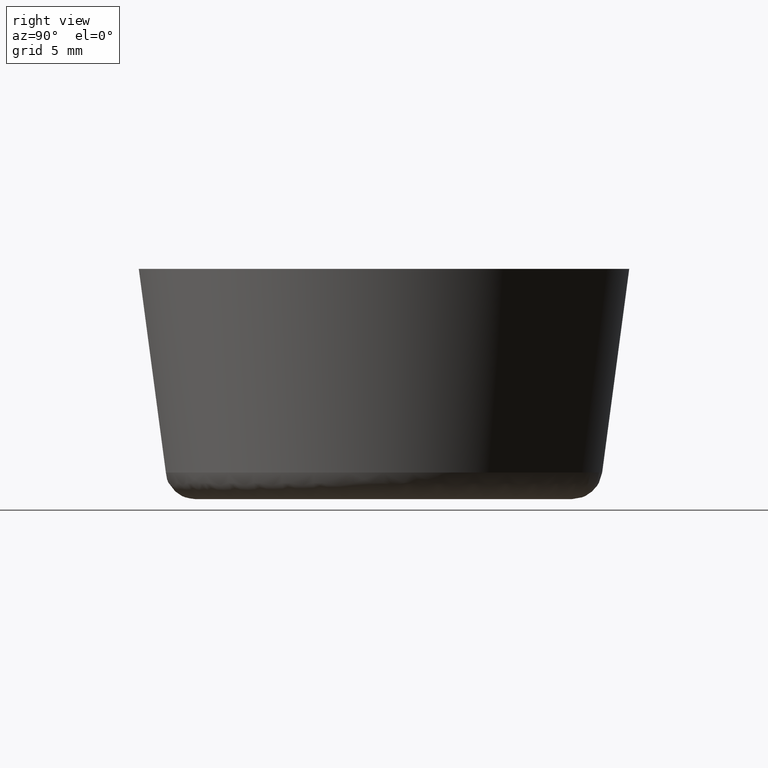
[diagram: clean part render]
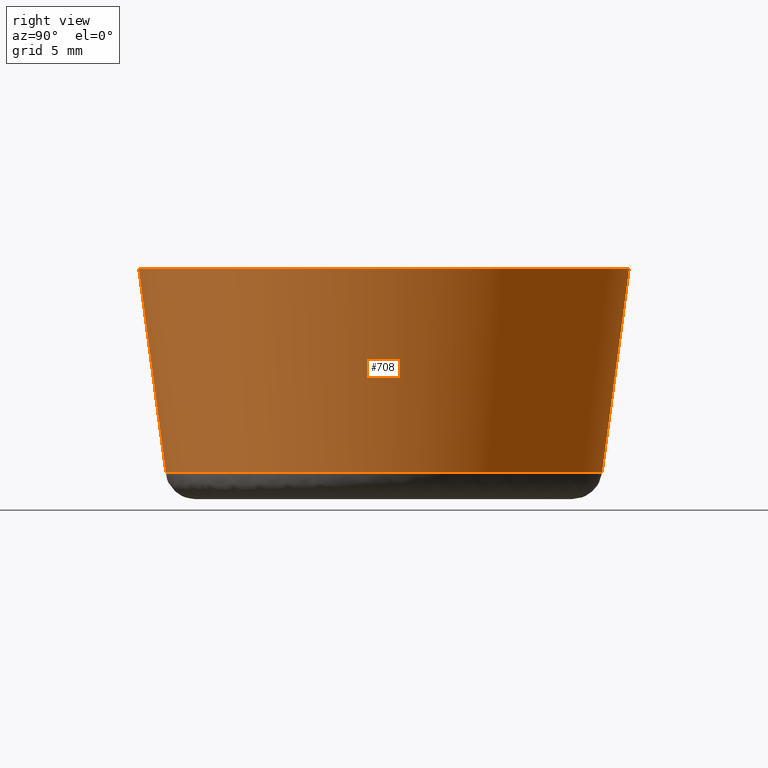
[diagram: same view with one face highlighted and labeled with its STEP entity id]
A machine part, right view. The second image highlights one B-rep face of the part: STEP entity #708.
In plain terms, the highlighted face is a freeform B-spline surface patch.
Its self-contained STEP definition (entity closure, byte-faithful):
#507=CARTESIAN_POINT('',(1.116573073906258,-14.187552637133550,1.735668956837331));
#508=VERTEX_POINT('',#507);
#509=CARTESIAN_POINT('',(-13.233295331467041,-5.235769623650086,1.735669910936193));
#510=VERTEX_POINT('',#509);
#526=CARTESIAN_POINT('',(1.255336324393051,-15.950677627117660,14.999996730857230));
#527=VERTEX_POINT('',#526);
#528=CARTESIAN_POINT('',(1.116573073906258,-14.187552637133550,1.735668956837331));
#529=CARTESIAN_POINT('',(1.255336324393051,-15.950677627117660,14.999996730857230));
#530=QUASI_UNIFORM_CURVE('',1,(#528,#529),.UNSPECIFIED.,.F.,.U.);
#531=EDGE_CURVE('',#508,#527,#530,.T.);
#533=CARTESIAN_POINT('',(-14.877832352817700,-5.886432640081111,14.999996424561029));
#534=VERTEX_POINT('',#533);
#550=CARTESIAN_POINT('',(-13.233295331467041,-5.235769623650086,1.735669910936193));
#551=CARTESIAN_POINT('',(-14.877832352817700,-5.886432640081111,14.999996424561029));
#552=QUASI_UNIFORM_CURVE('',1,(#550,#551),.UNSPECIFIED.,.F.,.U.);
#553=EDGE_CURVE('',#510,#534,#552,.T.);
#558=CARTESIAN_POINT('',(1.113115555696836,-14.143474145704760,1.404064825000000));
#559=CARTESIAN_POINT('',(15.256589701401605,-13.030358590007925,1.404064825000000));
#560=CARTESIAN_POINT('',(14.143474145704760,1.113115555696836,1.404064825000000));
#561=CARTESIAN_POINT('',(13.030358590007925,15.256589701401605,1.404064825000000));
#562=CARTESIAN_POINT('',(-1.113115555696836,14.143474145704760,1.404064825000000));
#563=CARTESIAN_POINT('',(-15.256589701401605,13.030358590007925,1.404064825000000));
#564=CARTESIAN_POINT('',(-14.143474145704760,-1.113115555696836,1.404064825000000));
#565=CARTESIAN_POINT('',(-13.976260697133059,-3.237763867890734,1.404064824999999));
#566=CARTESIAN_POINT('',(-13.192180469827216,-5.219507793083807,1.404064825000000));
#567=CARTESIAN_POINT('',(1.258901281044246,-15.995857419580670,15.339898379375001));
#568=CARTESIAN_POINT('',(17.254758700624915,-14.736956138536431,15.339898379375008));
#569=CARTESIAN_POINT('',(15.995857419580670,1.258901281044246,15.339898379375001));
#570=CARTESIAN_POINT('',(14.736956138536431,17.254758700624915,15.339898379375008));
#571=CARTESIAN_POINT('',(-1.258901281044246,15.995857419580670,15.339898379375001));
#572=CARTESIAN_POINT('',(-17.254758700624915,14.736956138536431,15.339898379375008));
#573=CARTESIAN_POINT('',(-15.995857419580670,-1.258901281044246,15.339898379375001));
#574=CARTESIAN_POINT('',(-15.806743878279960,-3.661816655194198,15.339898379375001));
#575=CARTESIAN_POINT('',(-14.919971972573501,-5.903111328832458,15.339898379375008));
#583=(BOUNDED_SURFACE()B_SPLINE_SURFACE(2,1,((#558,#567),(#559,#568),(#560,#569),(#561,#570),(#562,#571),(#563,#572),(#564,#573),(#565,#574),(#566,#575)),.UNSPECIFIED.,.F.,.F.,.U.)B_SPLINE_SURFACE_WITH_KNOTS((3,2,2,2,3),(2,2),(0.0,26.584756271276941,53.169512542553882,79.754268813830819,85.071220068086220),(0.0,14.059161928304780),.UNSPECIFIED.)GEOMETRIC_REPRESENTATION_ITEM()RATIONAL_B_SPLINE_SURFACE(((1.0,1.0),(0.707106781186548,0.707106781186548),(1.0,1.0),(0.707106781186548,0.707106781186548),(1.0,1.0),(0.707106781186548,0.707106781186548),(1.0,1.0),(0.941421356237310,0.941421356237310),(0.906274169979695,0.906274169979695)))REPRESENTATION_ITEM('')SURFACE());
#584=CARTESIAN_POINT('',(-14.231422999999999,0.0,1.735673000000000));
#585=VERTEX_POINT('',#584);
#586=CARTESIAN_POINT('',(-13.233295331467042,-5.235769623650086,1.735669910936193));
#587=CARTESIAN_POINT('',(-14.231422808505531,-2.713024411246523,1.735671455468096));
#588=CARTESIAN_POINT('',(-14.231422999999999,0.0,1.735673000000000));
#596=(BOUNDED_CURVE()B_SPLINE_CURVE(2,(#586,#587,#588),.UNSPECIFIED.,.F.,.U.)B_SPLINE_CURVE_WITH_KNOTS((3,3),(0.937532604761302,1.0),.UNSPECIFIED.)CURVE()GEOMETRIC_REPRESENTATION_ITEM()RATIONAL_B_SPLINE_CURVE((0.890203251762617,0.926814894150583,1.0))REPRESENTATION_ITEM(''));
#597=EDGE_CURVE('',#510,#585,#596,.T.);
#598=ORIENTED_EDGE('',*,*,#597,.F.);
#599=ORIENTED_EDGE('',*,*,#553,.T.);
#600=CARTESIAN_POINT('',(-16.0,0.0,15.0));
#601=VERTEX_POINT('',#600);
#602=CARTESIAN_POINT('',(-14.877832352817700,-5.886432640081111,14.999996424561031));
#603=CARTESIAN_POINT('',(-15.999999778354596,-3.050179167741824,14.999998212280511));
#604=CARTESIAN_POINT('',(-16.0,0.0,15.0));
#612=(BOUNDED_CURVE()B_SPLINE_CURVE(2,(#602,#603,#604),.UNSPECIFIED.,.F.,.U.)B_SPLINE_CURVE_WITH_KNOTS((3,3),(0.937532605537873,1.0),.UNSPECIFIED.)CURVE()GEOMETRIC_REPRESENTATION_ITEM()RATIONAL_B_SPLINE_CURVE((0.890203252672901,0.926814895060392,1.0))REPRESENTATION_ITEM(''));
#613=EDGE_CURVE('',#534,#601,#612,.T.);
#614=ORIENTED_EDGE('',*,*,#613,.T.);
#615=CARTESIAN_POINT('',(16.0,0.0,15.0));
#616=VERTEX_POINT('',#615);
#617=CARTESIAN_POINT('',(-16.0,0.0,15.0));
#618=CARTESIAN_POINT('',(-15.999999999999998,15.999999999999998,14.999999999999995));
#619=CARTESIAN_POINT('',(0.0,16.0,15.0));
#620=CARTESIAN_POINT('',(15.999999999999998,15.999999999999998,14.999999999999995));
#621=CARTESIAN_POINT('',(16.0,0.0,15.0));
#629=(BOUNDED_CURVE()B_SPLINE_CURVE(2,(#617,#618,#619,#620,#621),.UNSPECIFIED.,.F.,.U.)B_SPLINE_CURVE_WITH_KNOTS((3,2,3),(0.0,0.250000000000000,0.500000000000000),.UNSPECIFIED.)CURVE()GEOMETRIC_REPRESENTATION_ITEM()RATIONAL_B_SPLINE_CURVE((1.0,0.707106781186548,1.0,0.707106781186548,1.0))REPRESENTATION_ITEM(''));
#630=EDGE_CURVE('',#601,#616,#629,.T.);
#631=ORIENTED_EDGE('',*,*,#630,.T.);
#632=CARTESIAN_POINT('',(16.0,0.0,15.0));
#633=CARTESIAN_POINT('',(15.999999982900428,-14.790256181265873,14.999998365428613));
#634=CARTESIAN_POINT('',(1.255336324393051,-15.950677627117662,14.999996730857225));
#642=(BOUNDED_CURVE()B_SPLINE_CURVE(2,(#632,#633,#634),.UNSPECIFIED.,.F.,.U.)B_SPLINE_CURVE_WITH_KNOTS((3,3),(0.500000000000000,0.736331399217052),.UNSPECIFIED.)CURVE()GEOMETRIC_REPRESENTATION_ITEM()RATIONAL_B_SPLINE_CURVE((1.0,0.723120543106523,0.969723561909788))REPRESENTATION_ITEM(''));
#643=EDGE_CURVE('',#616,#527,#642,.T.);
#644=ORIENTED_EDGE('',*,*,#643,.T.);
#645=ORIENTED_EDGE('',*,*,#531,.F.);
#646=CARTESIAN_POINT('',(14.231422999999999,0.0,1.735673000000000));
#647=VERTEX_POINT('',#646);
#648=CARTESIAN_POINT('',(14.231422999999999,0.0,1.735673000000000));
#649=CARTESIAN_POINT('',(14.231422978851844,-13.155402497452194,1.735670978418665));
#650=CARTESIAN_POINT('',(1.116573073906259,-14.187552637133546,1.735668956837331));
#658=(BOUNDED_CURVE()B_SPLINE_CURVE(2,(#648,#649,#650),.UNSPECIFIED.,.F.,.U.)B_SPLINE_CURVE_WITH_KNOTS((3,3),(0.500000000000000,0.736331439140819),.UNSPECIFIED.)CURVE()GEOMETRIC_REPRESENTATION_ITEM()RATIONAL_B_SPLINE_CURVE((1.0,0.723120496332920,0.969723645227733))REPRESENTATION_ITEM(''));
#659=EDGE_CURVE('',#647,#508,#658,.T.);
#660=ORIENTED_EDGE('',*,*,#659,.F.);
#661=CARTESIAN_POINT('',(2.412205854072831,14.025500403396210,1.735673009159751));
#662=VERTEX_POINT('',#661);
#663=CARTESIAN_POINT('',(2.412205854072831,14.025500403396217,1.735673009159751));
#664=CARTESIAN_POINT('',(14.231422999999998,11.992746990569252,1.735673000000001));
#665=CARTESIAN_POINT('',(14.231422999999999,0.0,1.735673000000000));
#673=(BOUNDED_CURVE()B_SPLINE_CURVE(2,(#663,#664,#665),.UNSPECIFIED.,.F.,.U.)B_SPLINE_CURVE_WITH_KNOTS((3,3),(0.279150973644628,0.500000000000000),.UNSPECIFIED.)CURVE()GEOMETRIC_REPRESENTATION_ITEM()RATIONAL_B_SPLINE_CURVE((0.939659646670702,0.741259271195833,1.0))REPRESENTATION_ITEM(''));
#674=EDGE_CURVE('',#662,#647,#673,.T.);
#675=ORIENTED_EDGE('',*,*,#674,.F.);
#676=CARTESIAN_POINT('',(-14.140502789280269,1.606106943626014,1.735673009137659));
#677=VERTEX_POINT('',#676);
#678=CARTESIAN_POINT('',(-14.140502789280273,1.606106943626015,1.735673009137659));
#679=CARTESIAN_POINT('',(-12.706493892473151,14.231423000000005,1.735673000000001));
#680=CARTESIAN_POINT('',(0.0,14.231422999999999,1.735673000000000));
#681=CARTESIAN_POINT('',(1.214892416485184,14.231423000000003,1.735673000000000));
#682=CARTESIAN_POINT('',(2.412205854072831,14.025500403396215,1.735673009159751));
#690=(BOUNDED_CURVE()B_SPLINE_CURVE(2,(#678,#679,#680,#681,#682),.UNSPECIFIED.,.F.,.U.)B_SPLINE_CURVE_WITH_KNOTS((3,2,3),(0.019555763443353,0.250000000000000,0.279150973644628),.UNSPECIFIED.)CURVE()GEOMETRIC_REPRESENTATION_ITEM()RATIONAL_B_SPLINE_CURVE((0.957762333073472,0.730017783191660,1.0,0.965847509990715,0.939659646670702))REPRESENTATION_ITEM(''));
#691=EDGE_CURVE('',#677,#662,#690,.T.);
#692=ORIENTED_EDGE('',*,*,#691,.F.);
#693=CARTESIAN_POINT('',(-14.231422999999999,0.0,1.735673000000000));
#694=CARTESIAN_POINT('',(-14.231422999999998,0.805626925825542,1.735673000000000));
#695=CARTESIAN_POINT('',(-14.140502789280273,1.606106943626015,1.735673009137659));
#703=(BOUNDED_CURVE()B_SPLINE_CURVE(2,(#693,#694,#695),.UNSPECIFIED.,.F.,.U.)B_SPLINE_CURVE_WITH_KNOTS((3,3),(0.0,0.019555763443353),.UNSPECIFIED.)CURVE()GEOMETRIC_REPRESENTATION_ITEM()RATIONAL_B_SPLINE_CURVE((1.0,0.977088997994887,0.957762333073472))REPRESENTATION_ITEM(''));
#704=EDGE_CURVE('',#585,#677,#703,.T.);
#705=ORIENTED_EDGE('',*,*,#704,.F.);
#706=EDGE_LOOP('',(#598,#599,#614,#631,#644,#645,#660,#675,#692,#705));
#707=FACE_OUTER_BOUND('',#706,.T.);
#708=ADVANCED_FACE('',(#707),#583,.T.);